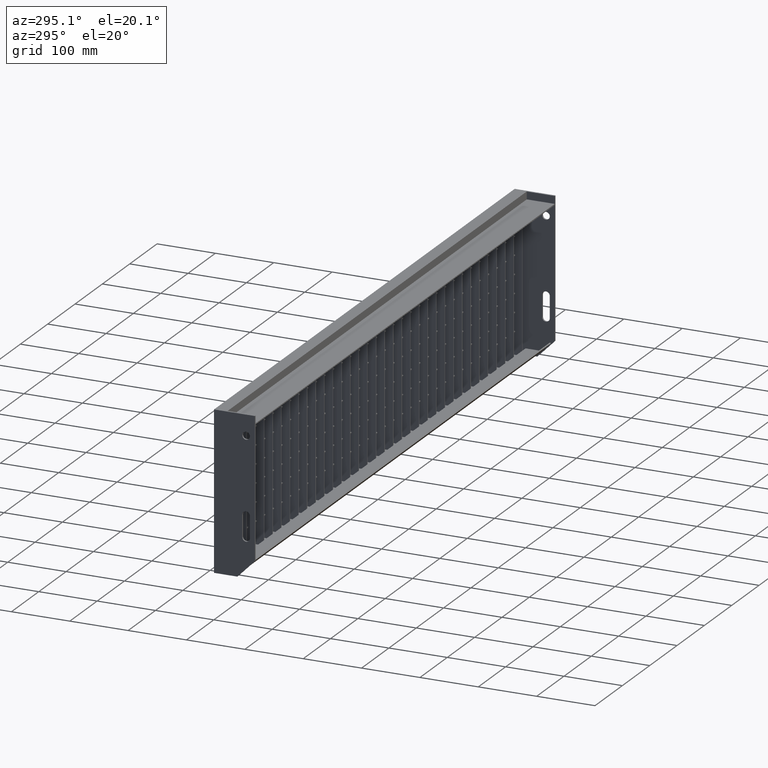
[diagram: clean part render]
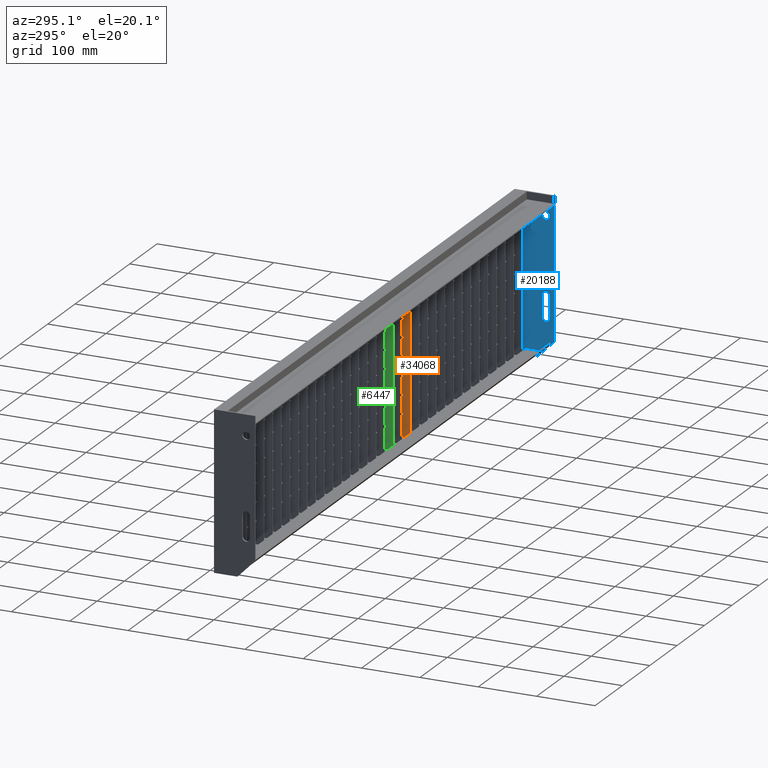
[diagram: same view with three faces highlighted in distinct colors, each labeled with its STEP entity id]
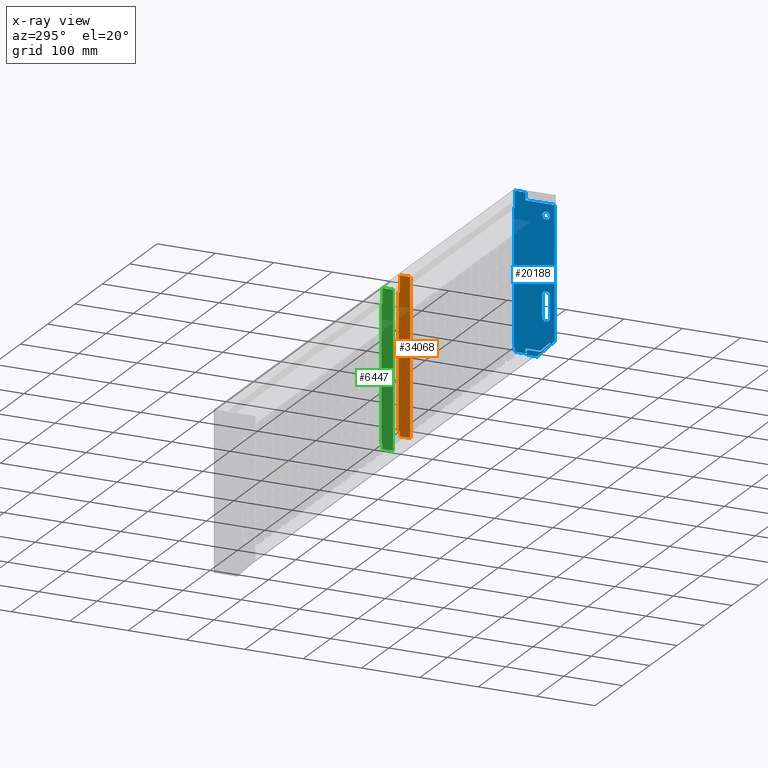
[diagram: x-ray of the same camera — body ghosted, the three highlighted faces saturated]
A machine part, auxiliary view with three faces highlighted in distinct colors.
The next image is the same camera in x-ray (body ghosted, the three faces saturated) — at least one of them is partly hidden behind the body in this view.
Their STEP definitions:

[orange] entity #34068 — the highlighted planar face has unit normal (-1, 0, 0).
#15 = DIRECTION ( 'NONE',  ( 0.0000000000000000000, -1.000000000000000000, 0.0000000000000000000 ) ) ;
#326 = DIRECTION ( 'NONE',  ( 0.0000000000000000000, 1.000000000000000000, 0.0000000000000000000 ) ) ;
#457 = VERTEX_POINT ( 'NONE', #23745 ) ;
#1052 = VERTEX_POINT ( 'NONE', #11243 ) ;
#1055 = CARTESIAN_POINT ( 'NONE',  ( 125.2500000000000000, 50.00000000000000000, -268.0000000000000000 ) ) ;
#1258 = EDGE_CURVE ( 'NONE', #24631, #14525, #2024, .T. ) ;
#1399 = CARTESIAN_POINT ( 'NONE',  ( 125.2500000000000000, 0.0000000000000000000, 0.0000000000000000000 ) ) ;
#1424 = DIRECTION ( 'NONE',  ( 0.0000000000000000000, 0.0000000000000000000, -1.000000000000000000 ) ) ;
#1975 = VERTEX_POINT ( 'NONE', #1055 ) ;
#2024 = LINE ( 'NONE', #29730, #33116 ) ;
#2403 = VERTEX_POINT ( 'NONE', #8217 ) ;
#2531 = EDGE_CURVE ( 'NONE', #9332, #24631, #5450, .T. ) ;
#2745 = VECTOR ( 'NONE', #23069, 1000.000000000000000 ) ;
#2964 = ORIENTED_EDGE ( 'NONE', *, *, #15073, .F. ) ;
#3146 = LINE ( 'NONE', #17683, #2745 ) ;
#5253 = LINE ( 'NONE', #32401, #32598 ) ;
#5450 = LINE ( 'NONE', #22664, #29793 ) ;
#6516 = CARTESIAN_POINT ( 'NONE',  ( 125.2500000000000000, 70.00000000000000000, -29.99999999999999300 ) ) ;
#7496 = EDGE_CURVE ( 'NONE', #1052, #34517, #24089, .T. ) ;
#7508 = CARTESIAN_POINT ( 'NONE',  ( 125.2500000000000000, 67.99999999999998600, -259.5000000000000000 ) ) ;
#7884 = LINE ( 'NONE', #9997, #28022 ) ;
#8217 = CARTESIAN_POINT ( 'NONE',  ( 125.2499999999999700, 70.00000000000021300, -259.5000000000000000 ) ) ;
#8609 = VECTOR ( 'NONE', #11910, 1000.000000000000000 ) ;
#9332 = VERTEX_POINT ( 'NONE', #22656 ) ;
#9997 = CARTESIAN_POINT ( 'NONE',  ( 125.2500000000000000, 67.99999999999998600, -259.5000000000000000 ) ) ;
#10338 = ORIENTED_EDGE ( 'NONE', *, *, #7496, .F. ) ;
#11243 = CARTESIAN_POINT ( 'NONE',  ( 125.2500000000000000, 70.00000000000000000, -29.99999999999999300 ) ) ;
#11458 = ORIENTED_EDGE ( 'NONE', *, *, #17685, .F. ) ;
#11910 = DIRECTION ( 'NONE',  ( 0.0000000000000000000, 0.0000000000000000000, -1.000000000000000000 ) ) ;
#12827 = DIRECTION ( 'NONE',  ( 0.0000000000000000000, 1.000000000000000000, 0.0000000000000000000 ) ) ;
#13747 = VERTEX_POINT ( 'NONE', #27673 ) ;
#14404 = VECTOR ( 'NONE', #15, 1000.000000000000000 ) ;
#14525 = VERTEX_POINT ( 'NONE', #22836 ) ;
#14675 = AXIS2_PLACEMENT_3D ( 'NONE', #1399, #22923, #23041 ) ;
#14924 = ORIENTED_EDGE ( 'NONE', *, *, #1258, .F. ) ;
#15073 = EDGE_CURVE ( 'NONE', #15193, #2403, #7884, .T. ) ;
#15193 = VERTEX_POINT ( 'NONE', #7508 ) ;
#16599 = ORIENTED_EDGE ( 'NONE', *, *, #27085, .F. ) ;
#17202 = CARTESIAN_POINT ( 'NONE',  ( 125.2500000000000000, 50.00000000000000000, -1.999999999999993600 ) ) ;
#17585 = ORIENTED_EDGE ( 'NONE', *, *, #27158, .F. ) ;
#17683 = CARTESIAN_POINT ( 'NONE',  ( 125.2500000000000000, 67.99999999999997200, -268.0000000000000000 ) ) ;
#17685 = EDGE_CURVE ( 'NONE', #2403, #1052, #19472, .T. ) ;
#17874 = ORIENTED_EDGE ( 'NONE', *, *, #27413, .F. ) ;
#19472 = LINE ( 'NONE', #6516, #29105 ) ;
#19741 = CARTESIAN_POINT ( 'NONE',  ( 125.2499999999999700, 68.00000000000000000, -30.00000000000000000 ) ) ;
#20013 = LINE ( 'NONE', #33134, #23367 ) ;
#21296 = CARTESIAN_POINT ( 'NONE',  ( 125.2500000000000000, 50.00000000000000000, -1.999999999999993600 ) ) ;
#22196 = CARTESIAN_POINT ( 'NONE',  ( 125.2500000000000000, 68.00000000000000000, -29.99999999999999300 ) ) ;
#22251 = VECTOR ( 'NONE', #29910, 1000.000000000000000 ) ;
#22283 = FACE_OUTER_BOUND ( 'NONE', #22712, .T. ) ;
#22373 = ORIENTED_EDGE ( 'NONE', *, *, #28467, .F. ) ;
#22656 = CARTESIAN_POINT ( 'NONE',  ( 125.2500000000000000, 68.00000000000000000, -1.999999999999991300 ) ) ;
#22664 = CARTESIAN_POINT ( 'NONE',  ( 125.2500000000000000, 68.00000000000000000, -1.999999999999991300 ) ) ;
#22712 = EDGE_LOOP ( 'NONE', ( #10338, #11458, #2964, #17585, #17874, #22373, #16599, #14924, #28795, #24424 ) ) ;
#22836 = CARTESIAN_POINT ( 'NONE',  ( 125.2500000000000000, 50.00000000000000000, -15.00000000000000000 ) ) ;
#22923 = DIRECTION ( 'NONE',  ( -1.000000000000000000, 0.0000000000000000000, 0.0000000000000000000 ) ) ;
#23041 = DIRECTION ( 'NONE',  ( 0.0000000000000000000, 0.0000000000000000000, 1.000000000000000000 ) ) ;
#23069 = DIRECTION ( 'NONE',  ( 0.0000000000000000000, 1.632680918566405200E-015, 1.000000000000000000 ) ) ;
#23367 = VECTOR ( 'NONE', #1424, 1000.000000000000000 ) ;
#23745 = CARTESIAN_POINT ( 'NONE',  ( 125.2500000000000000, 67.99999999999997200, -268.0000000000000000 ) ) ;
#24089 = LINE ( 'NONE', #28225, #14404 ) ;
#24424 = ORIENTED_EDGE ( 'NONE', *, *, #34391, .F. ) ;
#24631 = VERTEX_POINT ( 'NONE', #21296 ) ;
#25324 = DIRECTION ( 'NONE',  ( -0.0000000000000000000, -0.0000000000000000000, 1.000000000000000000 ) ) ;
#27085 = EDGE_CURVE ( 'NONE', #14525, #13747, #20013, .T. ) ;
#27158 = EDGE_CURVE ( 'NONE', #457, #15193, #3146, .T. ) ;
#27277 = LINE ( 'NONE', #22196, #22251 ) ;
#27413 = EDGE_CURVE ( 'NONE', #1975, #457, #5253, .T. ) ;
#27673 = CARTESIAN_POINT ( 'NONE',  ( 125.2500000000000000, 50.00000000000000000, -259.5000000000000000 ) ) ;
#28022 = VECTOR ( 'NONE', #12827, 1000.000000000000000 ) ;
#28225 = CARTESIAN_POINT ( 'NONE',  ( 125.2500000000000000, 70.00000000000000000, -29.99999999999999300 ) ) ;
#28467 = EDGE_CURVE ( 'NONE', #13747, #1975, #32550, .T. ) ;
#28795 = ORIENTED_EDGE ( 'NONE', *, *, #2531, .F. ) ;
#29105 = VECTOR ( 'NONE', #25324, 1000.000000000000000 ) ;
#29730 = CARTESIAN_POINT ( 'NONE',  ( 125.2500000000000000, 50.00000000000000000, -1.999999999999993600 ) ) ;
#29793 = VECTOR ( 'NONE', #30601, 1000.000000000000000 ) ;
#29910 = DIRECTION ( 'NONE',  ( 0.0000000000000000000, 0.0000000000000000000, 1.000000000000000000 ) ) ;
#30601 = DIRECTION ( 'NONE',  ( 0.0000000000000000000, -1.000000000000000000, -1.204669080539449300E-016 ) ) ;
#32401 = CARTESIAN_POINT ( 'NONE',  ( 125.2500000000000000, 50.00000000000000000, -268.0000000000000000 ) ) ;
#32426 = DIRECTION ( 'NONE',  ( 0.0000000000000000000, 0.0000000000000000000, -1.000000000000000000 ) ) ;
#32550 = LINE ( 'NONE', #17202, #8609 ) ;
#32598 = VECTOR ( 'NONE', #326, 1000.000000000000000 ) ;
#33116 = VECTOR ( 'NONE', #32426, 1000.000000000000000 ) ;
#33134 = CARTESIAN_POINT ( 'NONE',  ( 125.2500000000000000, 50.00000000000000000, -1.999999999999993600 ) ) ;
#33555 = PLANE ( 'NONE',  #14675 ) ;
#34068 = ADVANCED_FACE ( 'NONE', ( #22283 ), #33555, .T. ) ;
#34391 = EDGE_CURVE ( 'NONE', #34517, #9332, #27277, .T. ) ;
#34517 = VERTEX_POINT ( 'NONE', #19741 ) ;

[blue] entity #20188 — the highlighted planar face has unit normal (-1, 0, 0).
#206 = LINE ( 'NONE', #12543, #15790 ) ;
#274 = ORIENTED_EDGE ( 'NONE', *, *, #32957, .F. ) ;
#303 = AXIS2_PLACEMENT_3D ( 'NONE', #18824, #11040, #2685 ) ;
#382 = DIRECTION ( 'NONE',  ( 1.000000000000000000, 0.0000000000000000000, 0.0000000000000000000 ) ) ;
#392 = LINE ( 'NONE', #14580, #28552 ) ;
#436 = ORIENTED_EDGE ( 'NONE', *, *, #26645, .F. ) ;
#449 = LINE ( 'NONE', #21615, #25288 ) ;
#555 = VERTEX_POINT ( 'NONE', #21185 ) ;
#602 = VECTOR ( 'NONE', #19276, 1000.000000000000000 ) ;
#745 = VERTEX_POINT ( 'NONE', #2079 ) ;
#1092 = AXIS2_PLACEMENT_3D ( 'NONE', #28634, #28871, #23619 ) ;
#1411 = VERTEX_POINT ( 'NONE', #9301 ) ;
#1685 = VERTEX_POINT ( 'NONE', #32054 ) ;
#1805 = CARTESIAN_POINT ( 'NONE',  ( 547.0000000000000000, 21.50000000000018500, -203.4999999999998900 ) ) ;
#1961 = VERTEX_POINT ( 'NONE', #27847 ) ;
#2079 = CARTESIAN_POINT ( 'NONE',  ( 547.0000000000000000, 50.00000000000011400, -1.999999999999997800 ) ) ;
#2121 = EDGE_CURVE ( 'NONE', #18787, #12784, #24422, .T. ) ;
#2211 = ORIENTED_EDGE ( 'NONE', *, *, #4395, .T. ) ;
#2501 = CARTESIAN_POINT ( 'NONE',  ( 547.0000000000000000, 68.00000000000000000, -30.00000000000000000 ) ) ;
#2675 = LINE ( 'NONE', #19120, #20391 ) ;
#2685 = DIRECTION ( 'NONE',  ( 0.0000000000000000000, 0.0000000000000000000, -1.000000000000000000 ) ) ;
#2749 = CARTESIAN_POINT ( 'NONE',  ( 547.0000000000000000, 2.020667218593132700E-013, -240.0000000000001700 ) ) ;
#2950 = FACE_BOUND ( 'NONE', #26959, .T. ) ;
#2958 = LINE ( 'NONE', #2501, #24862 ) ;
#3105 = CARTESIAN_POINT ( 'NONE',  ( 547.0000000000000000, 15.00000000000017900, -28.50000000000000400 ) ) ;
#3546 = CARTESIAN_POINT ( 'NONE',  ( 547.0000000000000000, 68.00000000000000000, -2.000000000000001800 ) ) ;
#3652 = ORIENTED_EDGE ( 'NONE', *, *, #12965, .F. ) ;
#3716 = ORIENTED_EDGE ( 'NONE', *, *, #2121, .F. ) ;
#3825 = ORIENTED_EDGE ( 'NONE', *, *, #6712, .F. ) ;
#3990 = CIRCLE ( 'NONE', #303, 6.500000000000005300 ) ;
#4395 = EDGE_CURVE ( 'NONE', #25140, #1411, #19683, .T. ) ;
#4558 = CARTESIAN_POINT ( 'NONE',  ( 547.0000000000000000, 70.00000000000021300, 0.0000000000000000000 ) ) ;
#4723 = VERTEX_POINT ( 'NONE', #24327 ) ;
#4879 = VECTOR ( 'NONE', #28620, 1000.000000000000000 ) ;
#5113 = VECTOR ( 'NONE', #11367, 1000.000000000000000 ) ;
#5151 = EDGE_CURVE ( 'NONE', #5377, #18787, #16651, .T. ) ;
#5251 = LINE ( 'NONE', #30020, #602 ) ;
#5377 = VERTEX_POINT ( 'NONE', #12489 ) ;
#5532 = PLANE ( 'NONE',  #7441 ) ;
#5597 = ORIENTED_EDGE ( 'NONE', *, *, #11144, .F. ) ;
#5808 = DIRECTION ( 'NONE',  ( 0.0000000000000000000, 0.0000000000000000000, -1.000000000000000000 ) ) ;
#6136 = EDGE_CURVE ( 'NONE', #17119, #26852, #22897, .T. ) ;
#6140 = ORIENTED_EDGE ( 'NONE', *, *, #28984, .F. ) ;
#6442 = VERTEX_POINT ( 'NONE', #17905 ) ;
#6490 = CARTESIAN_POINT ( 'NONE',  ( 547.0000000000000000, 68.00000000000000000, -30.00000000000000000 ) ) ;
#6573 = VERTEX_POINT ( 'NONE', #26672 ) ;
#6712 = EDGE_CURVE ( 'NONE', #26852, #26424, #15727, .T. ) ;
#6777 = CARTESIAN_POINT ( 'NONE',  ( 547.0000000000000000, 50.00000000000011400, -15.00000000000000000 ) ) ;
#6964 = VECTOR ( 'NONE', #25212, 1000.000000000000000 ) ;
#7234 = DIRECTION ( 'NONE',  ( 0.0000000000000000000, -0.7071067811865474600, 0.7071067811865474600 ) ) ;
#7441 = AXIS2_PLACEMENT_3D ( 'NONE', #24349, #27021, #26576 ) ;
#7692 = DIRECTION ( 'NONE',  ( 0.0000000000000000000, 0.0000000000000000000, 1.000000000000000000 ) ) ;
#7904 = ORIENTED_EDGE ( 'NONE', *, *, #20731, .F. ) ;
#8081 = DIRECTION ( 'NONE',  ( -0.0000000000000000000, 1.000000000000000000, -0.0000000000000000000 ) ) ;
#8179 = VERTEX_POINT ( 'NONE', #23860 ) ;
#8557 = VECTOR ( 'NONE', #16328, 1000.000000000000000 ) ;
#8575 = ORIENTED_EDGE ( 'NONE', *, *, #19516, .T. ) ;
#8873 = LINE ( 'NONE', #2749, #29020 ) ;
#8937 = VERTEX_POINT ( 'NONE', #17783 ) ;
#8949 = CARTESIAN_POINT ( 'NONE',  ( 547.0000000000000000, 8.500000000000163400, -166.4999999999999400 ) ) ;
#9106 = EDGE_CURVE ( 'NONE', #8937, #25140, #3990, .T. ) ;
#9129 = VECTOR ( 'NONE', #30530, 1000.000000000000000 ) ;
#9200 = EDGE_CURVE ( 'NONE', #26973, #1685, #5251, .T. ) ;
#9209 = CARTESIAN_POINT ( 'NONE',  ( 547.0000000000000000, 30.00000000000020600, -270.0000000000000000 ) ) ;
#9301 = CARTESIAN_POINT ( 'NONE',  ( 547.0000000000000000, 8.500000000000177600, -203.4999999999998900 ) ) ;
#9305 = EDGE_CURVE ( 'NONE', #13723, #5377, #11560, .T. ) ;
#9562 = ORIENTED_EDGE ( 'NONE', *, *, #12578, .F. ) ;
#9753 = EDGE_CURVE ( 'NONE', #29351, #20963, #31279, .T. ) ;
#9800 = VECTOR ( 'NONE', #15256, 999.9999999999998900 ) ;
#9857 = CARTESIAN_POINT ( 'NONE',  ( 547.0000000000000000, 6.650757595082533900, -244.5294372515228600 ) ) ;
#10025 = CARTESIAN_POINT ( 'NONE',  ( 547.0000000000000000, 68.00000000000000000, -2.000000000000001800 ) ) ;
#10075 = LINE ( 'NONE', #32309, #28114 ) ;
#10463 = EDGE_CURVE ( 'NONE', #26424, #1961, #21582, .T. ) ;
#10628 = EDGE_LOOP ( 'NONE', ( #22115, #2211, #24955, #16217, #33085 ) ) ;
#11040 = DIRECTION ( 'NONE',  ( 1.000000000000000000, 0.0000000000000000000, 0.0000000000000000000 ) ) ;
#11144 = EDGE_CURVE ( 'NONE', #33581, #26973, #449, .T. ) ;
#11367 = DIRECTION ( 'NONE',  ( 0.0000000000000000000, -1.000000000000000000, 3.469446951953606200E-017 ) ) ;
#11482 = VERTEX_POINT ( 'NONE', #1805 ) ;
#11560 = LINE ( 'NONE', #30473, #27950 ) ;
#11586 = VERTEX_POINT ( 'NONE', #29400 ) ;
#11595 = EDGE_CURVE ( 'NONE', #12784, #30814, #2958, .T. ) ;
#11977 = DIRECTION ( 'NONE',  ( 0.0000000000000000000, -1.000000000000000000, 0.0000000000000000000 ) ) ;
#12489 = CARTESIAN_POINT ( 'NONE',  ( 547.0000000000000000, 70.00000000000021300, -259.5000000000000000 ) ) ;
#12543 = CARTESIAN_POINT ( 'NONE',  ( 547.0000000000000000, 23.62132034355966700, -261.5000000000000000 ) ) ;
#12578 = EDGE_CURVE ( 'NONE', #6442, #4723, #8873, .T. ) ;
#12686 = EDGE_LOOP ( 'NONE', ( #9562, #274, #436, #3652, #31511, #3716, #13112, #21966, #32653, #7904, #27825, #3825, #21774, #31956, #17080, #12728, #25149, #5597, #6140 ) ) ;
#12728 = ORIENTED_EDGE ( 'NONE', *, *, #20506, .F. ) ;
#12784 = VERTEX_POINT ( 'NONE', #6490 ) ;
#12965 = EDGE_CURVE ( 'NONE', #30814, #745, #13072, .T. ) ;
#13072 = LINE ( 'NONE', #10025, #31946 ) ;
#13112 = ORIENTED_EDGE ( 'NONE', *, *, #5151, .F. ) ;
#13661 = DIRECTION ( 'NONE',  ( 0.0000000000000000000, 0.0000000000000000000, 1.000000000000000000 ) ) ;
#13723 = VERTEX_POINT ( 'NONE', #17009 ) ;
#13892 = FACE_OUTER_BOUND ( 'NONE', #12686, .T. ) ;
#14580 = CARTESIAN_POINT ( 'NONE',  ( 547.0000000000000000, 48.00000000000020600, -261.5000000000000000 ) ) ;
#14944 = DIRECTION ( 'NONE',  ( 0.0000000000000000000, -1.000000000000000000, 0.0000000000000000000 ) ) ;
#15256 = DIRECTION ( 'NONE',  ( 0.0000000000000000000, 0.7071067811865489100, 0.7071067811865462400 ) ) ;
#15551 = CARTESIAN_POINT ( 'NONE',  ( 547.0000000000000000, 15.00000000000017900, -41.50000000000000000 ) ) ;
#15727 = LINE ( 'NONE', #32504, #8557 ) ;
#15790 = VECTOR ( 'NONE', #7234, 1000.000000000000100 ) ;
#15859 = EDGE_CURVE ( 'NONE', #11482, #8937, #24006, .T. ) ;
#15902 = AXIS2_PLACEMENT_3D ( 'NONE', #29980, #32339, #21806 ) ;
#16217 = ORIENTED_EDGE ( 'NONE', *, *, #23264, .T. ) ;
#16328 = DIRECTION ( 'NONE',  ( 0.0000000000000000000, 1.000000000000000000, 0.0000000000000000000 ) ) ;
#16503 = LINE ( 'NONE', #9857, #9800 ) ;
#16651 = LINE ( 'NONE', #4558, #4879 ) ;
#16863 = CARTESIAN_POINT ( 'NONE',  ( 547.0000000000000000, 15.00000000000018300, -203.4999999999998900 ) ) ;
#17009 = CARTESIAN_POINT ( 'NONE',  ( 547.0000000000000000, 68.00000000000021300, -259.5000000000000000 ) ) ;
#17080 = ORIENTED_EDGE ( 'NONE', *, *, #28063, .F. ) ;
#17119 = VERTEX_POINT ( 'NONE', #34245 ) ;
#17783 = CARTESIAN_POINT ( 'NONE',  ( 547.0000000000000000, 21.50000000000019500, -166.4999999999999400 ) ) ;
#17789 = CARTESIAN_POINT ( 'NONE',  ( 547.0000000000000000, 70.00000000000000000, -30.00000000000000000 ) ) ;
#17905 = CARTESIAN_POINT ( 'NONE',  ( 547.0000000000000000, 2.601319824573162500E-016, -14.99999999999999800 ) ) ;
#18381 = LINE ( 'NONE', #25549, #6964 ) ;
#18397 = DIRECTION ( 'NONE',  ( 0.0000000000000000000, -1.000000000000000000, 2.168404344971021900E-016 ) ) ;
#18787 = VERTEX_POINT ( 'NONE', #32681 ) ;
#18824 = CARTESIAN_POINT ( 'NONE',  ( 547.0000000000000000, 15.00000000000017900, -166.4999999999999400 ) ) ;
#18980 = VECTOR ( 'NONE', #14944, 1000.000000000000000 ) ;
#19120 = CARTESIAN_POINT ( 'NONE',  ( 547.0000000000000000, 30.00000000000020600, -270.0000000000000000 ) ) ;
#19276 = DIRECTION ( 'NONE',  ( 0.0000000000000000000, 0.0000000000000000000, 1.000000000000000000 ) ) ;
#19323 = DIRECTION ( 'NONE',  ( 0.0000000000000000000, 0.7071067811865470200, -0.7071067811865479100 ) ) ;
#19516 = EDGE_CURVE ( 'NONE', #20963, #29351, #24857, .T. ) ;
#19683 = LINE ( 'NONE', #8949, #9129 ) ;
#19700 = AXIS2_PLACEMENT_3D ( 'NONE', #28573, #20772, #31389 ) ;
#20188 = ADVANCED_FACE ( 'NONE', ( #21079, #2950, #13892 ), #5532, .T. ) ;
#20391 = VECTOR ( 'NONE', #27293, 1000.000000000000100 ) ;
#20506 = EDGE_CURVE ( 'NONE', #1685, #11586, #392, .T. ) ;
#20731 = EDGE_CURVE ( 'NONE', #1961, #8179, #24375, .T. ) ;
#20772 = DIRECTION ( 'NONE',  ( 1.000000000000000000, 0.0000000000000000000, 0.0000000000000000000 ) ) ;
#20963 = VERTEX_POINT ( 'NONE', #3105 ) ;
#20975 = EDGE_CURVE ( 'NONE', #1411, #6573, #32295, .T. ) ;
#21079 = FACE_BOUND ( 'NONE', #10628, .T. ) ;
#21185 = CARTESIAN_POINT ( 'NONE',  ( 547.0000000000000000, 50.00000000000011400, -15.00000000000000000 ) ) ;
#21243 = VERTEX_POINT ( 'NONE', #29574 ) ;
#21244 = CARTESIAN_POINT ( 'NONE',  ( 547.0000000000000000, 24.44974746830583400, -259.5000000000000000 ) ) ;
#21490 = CARTESIAN_POINT ( 'NONE',  ( 547.0000000000000000, 8.500000000000163400, -166.4999999999999400 ) ) ;
#21582 = LINE ( 'NONE', #26205, #31202 ) ;
#21606 = CARTESIAN_POINT ( 'NONE',  ( 547.0000000000000000, 21.50000000000018100, -203.4999999999998900 ) ) ;
#21615 = CARTESIAN_POINT ( 'NONE',  ( 547.0000000000000000, 70.00000000000021300, -270.0000000000000000 ) ) ;
#21774 = ORIENTED_EDGE ( 'NONE', *, *, #6136, .F. ) ;
#21806 = DIRECTION ( 'NONE',  ( 0.0000000000000000000, 0.0000000000000000000, -1.000000000000000000 ) ) ;
#21966 = ORIENTED_EDGE ( 'NONE', *, *, #9305, .F. ) ;
#22115 = ORIENTED_EDGE ( 'NONE', *, *, #9106, .T. ) ;
#22348 = ORIENTED_EDGE ( 'NONE', *, *, #9753, .T. ) ;
#22897 = LINE ( 'NONE', #29958, #23752 ) ;
#23264 = EDGE_CURVE ( 'NONE', #6573, #11482, #28092, .T. ) ;
#23532 = VECTOR ( 'NONE', #23711, 1000.000000000000000 ) ;
#23619 = DIRECTION ( 'NONE',  ( 0.0000000000000000000, 0.0000000000000000000, -1.000000000000000000 ) ) ;
#23711 = DIRECTION ( 'NONE',  ( 0.0000000000000000000, 1.000000000000000000, 0.0000000000000000000 ) ) ;
#23752 = VECTOR ( 'NONE', #19323, 1000.000000000000100 ) ;
#23860 = CARTESIAN_POINT ( 'NONE',  ( 547.0000000000000000, 68.00000000000021300, -268.0000000000000000 ) ) ;
#24006 = LINE ( 'NONE', #21606, #27745 ) ;
#24304 = EDGE_CURVE ( 'NONE', #8179, #13723, #10075, .T. ) ;
#24327 = CARTESIAN_POINT ( 'NONE',  ( 547.0000000000000000, 2.020667218593132700E-013, -240.0000000000001700 ) ) ;
#24349 = CARTESIAN_POINT ( 'NONE',  ( 547.0000000000000000, 0.0000000000000000000, 0.0000000000000000000 ) ) ;
#24375 = LINE ( 'NONE', #26158, #23532 ) ;
#24422 = LINE ( 'NONE', #17789, #18980 ) ;
#24838 = CARTESIAN_POINT ( 'NONE',  ( 547.0000000000000000, 48.00000000000020600, -270.0000000000000000 ) ) ;
#24857 = CIRCLE ( 'NONE', #1092, 6.499999999999999100 ) ;
#24862 = VECTOR ( 'NONE', #7692, 1000.000000000000000 ) ;
#24955 = ORIENTED_EDGE ( 'NONE', *, *, #20975, .T. ) ;
#25140 = VERTEX_POINT ( 'NONE', #21490 ) ;
#25149 = ORIENTED_EDGE ( 'NONE', *, *, #9200, .F. ) ;
#25212 = DIRECTION ( 'NONE',  ( 0.0000000000000000000, 0.0000000000000000000, -1.000000000000000000 ) ) ;
#25288 = VECTOR ( 'NONE', #8081, 1000.000000000000000 ) ;
#25549 = CARTESIAN_POINT ( 'NONE',  ( 547.0000000000000000, 50.00000000000011400, -1.999999999999997800 ) ) ;
#26158 = CARTESIAN_POINT ( 'NONE',  ( 547.0000000000000000, 50.00000000000021300, -268.0000000000000000 ) ) ;
#26205 = CARTESIAN_POINT ( 'NONE',  ( 547.0000000000000000, 50.00000000000021300, -259.5000000000000000 ) ) ;
#26424 = VERTEX_POINT ( 'NONE', #32017 ) ;
#26576 = DIRECTION ( 'NONE',  ( 0.0000000000000000000, 0.0000000000000000000, 1.000000000000000000 ) ) ;
#26645 = EDGE_CURVE ( 'NONE', #745, #555, #18381, .T. ) ;
#26672 = CARTESIAN_POINT ( 'NONE',  ( 547.0000000000000000, 15.00000000000018300, -209.9999999999998900 ) ) ;
#26852 = VERTEX_POINT ( 'NONE', #21244 ) ;
#26959 = EDGE_LOOP ( 'NONE', ( #22348, #8575 ) ) ;
#26973 = VERTEX_POINT ( 'NONE', #24838 ) ;
#27021 = DIRECTION ( 'NONE',  ( -1.000000000000000000, 0.0000000000000000000, 0.0000000000000000000 ) ) ;
#27079 = DIRECTION ( 'NONE',  ( 0.0000000000000000000, 3.750753461571482800E-016, 1.000000000000000000 ) ) ;
#27293 = DIRECTION ( 'NONE',  ( -0.0000000000000000000, 0.7071067811865491300, -0.7071067811865459100 ) ) ;
#27745 = VECTOR ( 'NONE', #27079, 1000.000000000000000 ) ;
#27825 = ORIENTED_EDGE ( 'NONE', *, *, #10463, .F. ) ;
#27847 = CARTESIAN_POINT ( 'NONE',  ( 547.0000000000000000, 50.00000000000021300, -268.0000000000000000 ) ) ;
#27913 = DIRECTION ( 'NONE',  ( 0.0000000000000000000, 1.000000000000000000, 0.0000000000000000000 ) ) ;
#27950 = VECTOR ( 'NONE', #27913, 1000.000000000000000 ) ;
#28063 = EDGE_CURVE ( 'NONE', #11586, #21243, #206, .T. ) ;
#28092 = CIRCLE ( 'NONE', #19700, 6.500000000000005300 ) ;
#28114 = VECTOR ( 'NONE', #13661, 1000.000000000000000 ) ;
#28552 = VECTOR ( 'NONE', #11977, 1000.000000000000000 ) ;
#28573 = CARTESIAN_POINT ( 'NONE',  ( 547.0000000000000000, 15.00000000000018300, -203.4999999999998900 ) ) ;
#28620 = DIRECTION ( 'NONE',  ( -0.0000000000000000000, -0.0000000000000000000, 1.000000000000000000 ) ) ;
#28634 = CARTESIAN_POINT ( 'NONE',  ( 547.0000000000000000, 15.00000000000017900, -35.00000000000000000 ) ) ;
#28871 = DIRECTION ( 'NONE',  ( 1.000000000000000000, 0.0000000000000000000, 0.0000000000000000000 ) ) ;
#28984 = EDGE_CURVE ( 'NONE', #4723, #33581, #2675, .T. ) ;
#29020 = VECTOR ( 'NONE', #29181, 1000.000000000000000 ) ;
#29181 = DIRECTION ( 'NONE',  ( -0.0000000000000000000, -0.0000000000000000000, -1.000000000000000000 ) ) ;
#29351 = VERTEX_POINT ( 'NONE', #15551 ) ;
#29400 = CARTESIAN_POINT ( 'NONE',  ( 547.0000000000000000, 23.62132034355966700, -261.5000000000000000 ) ) ;
#29574 = CARTESIAN_POINT ( 'NONE',  ( 547.0000000000000000, 6.650757595082533900, -244.5294372515228600 ) ) ;
#29958 = CARTESIAN_POINT ( 'NONE',  ( 547.0000000000000000, 8.064971157455628900, -243.1152236891497900 ) ) ;
#29980 = CARTESIAN_POINT ( 'NONE',  ( 547.0000000000000000, 15.00000000000017900, -35.00000000000000000 ) ) ;
#30020 = CARTESIAN_POINT ( 'NONE',  ( 547.0000000000000000, 48.00000000000020600, -270.0000000000000000 ) ) ;
#30148 = AXIS2_PLACEMENT_3D ( 'NONE', #16863, #382, #5808 ) ;
#30287 = LINE ( 'NONE', #6777, #5113 ) ;
#30473 = CARTESIAN_POINT ( 'NONE',  ( 547.0000000000000000, 68.00000000000021300, -259.5000000000000000 ) ) ;
#30530 = DIRECTION ( 'NONE',  ( 0.0000000000000000000, 3.750753461571482800E-016, -1.000000000000000000 ) ) ;
#30814 = VERTEX_POINT ( 'NONE', #3546 ) ;
#31202 = VECTOR ( 'NONE', #31461, 1000.000000000000000 ) ;
#31279 = CIRCLE ( 'NONE', #15902, 6.499999999999999100 ) ;
#31368 = EDGE_CURVE ( 'NONE', #21243, #17119, #16503, .T. ) ;
#31389 = DIRECTION ( 'NONE',  ( 0.0000000000000000000, 0.0000000000000000000, -1.000000000000000000 ) ) ;
#31461 = DIRECTION ( 'NONE',  ( 0.0000000000000000000, 0.0000000000000000000, -1.000000000000000000 ) ) ;
#31511 = ORIENTED_EDGE ( 'NONE', *, *, #11595, .F. ) ;
#31946 = VECTOR ( 'NONE', #18397, 1000.000000000000000 ) ;
#31956 = ORIENTED_EDGE ( 'NONE', *, *, #31368, .F. ) ;
#32017 = CARTESIAN_POINT ( 'NONE',  ( 547.0000000000000000, 50.00000000000021300, -259.5000000000000000 ) ) ;
#32054 = CARTESIAN_POINT ( 'NONE',  ( 547.0000000000000000, 48.00000000000020600, -261.5000000000000000 ) ) ;
#32295 = CIRCLE ( 'NONE', #30148, 6.500000000000005300 ) ;
#32309 = CARTESIAN_POINT ( 'NONE',  ( 547.0000000000000000, 68.00000000000021300, -268.0000000000000000 ) ) ;
#32339 = DIRECTION ( 'NONE',  ( 1.000000000000000000, 0.0000000000000000000, 0.0000000000000000000 ) ) ;
#32504 = CARTESIAN_POINT ( 'NONE',  ( 547.0000000000000000, 24.44974746830583400, -259.5000000000000000 ) ) ;
#32653 = ORIENTED_EDGE ( 'NONE', *, *, #24304, .F. ) ;
#32681 = CARTESIAN_POINT ( 'NONE',  ( 547.0000000000000000, 70.00000000000000000, -30.00000000000000000 ) ) ;
#32957 = EDGE_CURVE ( 'NONE', #555, #6442, #30287, .T. ) ;
#33085 = ORIENTED_EDGE ( 'NONE', *, *, #15859, .T. ) ;
#33581 = VERTEX_POINT ( 'NONE', #9209 ) ;
#34245 = CARTESIAN_POINT ( 'NONE',  ( 547.0000000000000000, 8.064971157455628900, -243.1152236891497900 ) ) ;

[green] entity #6447 — the highlighted planar face has unit normal (-1, 0, 0).
#420 = DIRECTION ( 'NONE',  ( 0.0000000000000000000, 1.000000000000000000, 0.0000000000000000000 ) ) ;
#787 = CARTESIAN_POINT ( 'NONE',  ( 62.25000000000000000, 68.00000000000000000, -29.99999999999999300 ) ) ;
#945 = ORIENTED_EDGE ( 'NONE', *, *, #15544, .F. ) ;
#1339 = VERTEX_POINT ( 'NONE', #30293 ) ;
#1755 = PLANE ( 'NONE',  #15587 ) ;
#1770 = DIRECTION ( 'NONE',  ( 0.0000000000000000000, 0.0000000000000000000, 1.000000000000000000 ) ) ;
#2397 = DIRECTION ( 'NONE',  ( 0.0000000000000000000, 0.0000000000000000000, -1.000000000000000000 ) ) ;
#2416 = EDGE_CURVE ( 'NONE', #7643, #2444, #17701, .T. ) ;
#2444 = VERTEX_POINT ( 'NONE', #24900 ) ;
#2725 = DIRECTION ( 'NONE',  ( 0.0000000000000000000, 0.0000000000000000000, -1.000000000000000000 ) ) ;
#2833 = DIRECTION ( 'NONE',  ( 0.0000000000000000000, -1.000000000000000000, -1.204669080539449300E-016 ) ) ;
#2888 = EDGE_CURVE ( 'NONE', #3142, #5979, #24809, .T. ) ;
#3142 = VERTEX_POINT ( 'NONE', #3268 ) ;
#3268 = CARTESIAN_POINT ( 'NONE',  ( 62.25000000000000000, 70.00000000000000000, -29.99999999999999300 ) ) ;
#3347 = VECTOR ( 'NONE', #23901, 1000.000000000000000 ) ;
#3992 = LINE ( 'NONE', #18278, #31722 ) ;
#4024 = LINE ( 'NONE', #31469, #31758 ) ;
#4173 = CARTESIAN_POINT ( 'NONE',  ( 62.25000000000000000, 68.00000000000021300, -12.68095132369090200 ) ) ;
#4533 = DIRECTION ( 'NONE',  ( 0.0000000000000000000, 1.000000000000000000, 0.0000000000000000000 ) ) ;
#4552 = DIRECTION ( 'NONE',  ( 0.0000000000000000000, 1.632680918566405200E-015, 1.000000000000000000 ) ) ;
#5046 = VECTOR ( 'NONE', #30953, 1000.000000000000000 ) ;
#5310 = VECTOR ( 'NONE', #4533, 1000.000000000000000 ) ;
#5979 = VERTEX_POINT ( 'NONE', #21447 ) ;
#6019 = CARTESIAN_POINT ( 'NONE',  ( 62.25000000000000000, 67.99999999999998600, -259.5000000000000000 ) ) ;
#6447 = ADVANCED_FACE ( 'NONE', ( #11932 ), #1755, .T. ) ;
#6751 = ORIENTED_EDGE ( 'NONE', *, *, #21387, .F. ) ;
#7130 = LINE ( 'NONE', #12079, #5046 ) ;
#7643 = VERTEX_POINT ( 'NONE', #6019 ) ;
#7876 = ORIENTED_EDGE ( 'NONE', *, *, #20636, .F. ) ;
#8462 = VERTEX_POINT ( 'NONE', #4173 ) ;
#10152 = ORIENTED_EDGE ( 'NONE', *, *, #22777, .F. ) ;
#10455 = VECTOR ( 'NONE', #11741, 1000.000000000000000 ) ;
#10744 = ORIENTED_EDGE ( 'NONE', *, *, #2888, .F. ) ;
#10989 = VECTOR ( 'NONE', #25051, 1000.000000000000000 ) ;
#11654 = CARTESIAN_POINT ( 'NONE',  ( 62.25000000000000000, 68.00000000000000000, -7.319048676309098900 ) ) ;
#11741 = DIRECTION ( 'NONE',  ( 0.0000000000000000000, 0.0000000000000000000, 1.000000000000000000 ) ) ;
#11932 = FACE_OUTER_BOUND ( 'NONE', #34462, .T. ) ;
#12020 = LINE ( 'NONE', #34357, #32190 ) ;
#12079 = CARTESIAN_POINT ( 'NONE',  ( 62.25000000000000000, 50.00000000000000000, -1.999999999999993600 ) ) ;
#13119 = CARTESIAN_POINT ( 'NONE',  ( 62.25000000000000000, 50.00000000000000000, -259.5000000000000000 ) ) ;
#13377 = ORIENTED_EDGE ( 'NONE', *, *, #30828, .F. ) ;
#14966 = LINE ( 'NONE', #34440, #22951 ) ;
#15417 = CARTESIAN_POINT ( 'NONE',  ( 62.25000000000000000, 0.0000000000000000000, 0.0000000000000000000 ) ) ;
#15544 = EDGE_CURVE ( 'NONE', #18104, #33267, #22148, .T. ) ;
#15587 = AXIS2_PLACEMENT_3D ( 'NONE', #15417, #28655, #23288 ) ;
#15743 = EDGE_CURVE ( 'NONE', #33267, #7643, #12020, .T. ) ;
#16022 = CARTESIAN_POINT ( 'NONE',  ( 62.25000000000000000, 70.00000000000000000, -29.99999999999999300 ) ) ;
#16141 = CARTESIAN_POINT ( 'NONE',  ( 62.25000000000000000, 50.00000000000000000, -1.999999999999993600 ) ) ;
#16438 = CARTESIAN_POINT ( 'NONE',  ( 62.25000000000000000, 67.99999999999998600, -259.5000000000000000 ) ) ;
#16832 = VECTOR ( 'NONE', #420, 1000.000000000000000 ) ;
#17701 = LINE ( 'NONE', #16438, #16832 ) ;
#17863 = ORIENTED_EDGE ( 'NONE', *, *, #2416, .F. ) ;
#18104 = VERTEX_POINT ( 'NONE', #28505 ) ;
#18278 = CARTESIAN_POINT ( 'NONE',  ( 62.25000000000000000, 68.00000000000000000, -29.99999999999999300 ) ) ;
#19546 = CARTESIAN_POINT ( 'NONE',  ( 62.25000000000000000, 50.00000000000000000, -15.00000000000000000 ) ) ;
#19768 = VECTOR ( 'NONE', #2833, 1000.000000000000000 ) ;
#20284 = ORIENTED_EDGE ( 'NONE', *, *, #24263, .F. ) ;
#20636 = EDGE_CURVE ( 'NONE', #1339, #29688, #7130, .T. ) ;
#21387 = EDGE_CURVE ( 'NONE', #5979, #8462, #31854, .T. ) ;
#21447 = CARTESIAN_POINT ( 'NONE',  ( 62.25000000000002800, 68.00000000000000000, -30.00000000000000000 ) ) ;
#21997 = ORIENTED_EDGE ( 'NONE', *, *, #27205, .F. ) ;
#22148 = LINE ( 'NONE', #33979, #5310 ) ;
#22241 = CARTESIAN_POINT ( 'NONE',  ( 62.25000000000000000, 70.00000000000000000, -29.99999999999999300 ) ) ;
#22342 = LINE ( 'NONE', #22241, #10989 ) ;
#22777 = EDGE_CURVE ( 'NONE', #8462, #33934, #4024, .T. ) ;
#22951 = VECTOR ( 'NONE', #2397, 1000.000000000000000 ) ;
#23288 = DIRECTION ( 'NONE',  ( 0.0000000000000000000, 0.0000000000000000000, 1.000000000000000000 ) ) ;
#23805 = ORIENTED_EDGE ( 'NONE', *, *, #24259, .F. ) ;
#23901 = DIRECTION ( 'NONE',  ( 0.0000000000000000000, -1.000000000000000000, 0.0000000000000000000 ) ) ;
#24043 = ORIENTED_EDGE ( 'NONE', *, *, #26783, .F. ) ;
#24259 = EDGE_CURVE ( 'NONE', #34045, #1339, #34838, .T. ) ;
#24263 = EDGE_CURVE ( 'NONE', #29688, #34613, #29397, .T. ) ;
#24359 = CARTESIAN_POINT ( 'NONE',  ( 62.25000000000000000, 68.00000000000000000, -1.999999999999991300 ) ) ;
#24809 = LINE ( 'NONE', #16022, #3347 ) ;
#24900 = CARTESIAN_POINT ( 'NONE',  ( 62.25000000000001400, 70.00000000000021300, -259.5000000000000000 ) ) ;
#25051 = DIRECTION ( 'NONE',  ( -0.0000000000000000000, -0.0000000000000000000, 1.000000000000000000 ) ) ;
#26348 = ORIENTED_EDGE ( 'NONE', *, *, #15743, .F. ) ;
#26783 = EDGE_CURVE ( 'NONE', #34613, #18104, #14966, .T. ) ;
#27205 = EDGE_CURVE ( 'NONE', #33934, #34045, #3992, .T. ) ;
#28505 = CARTESIAN_POINT ( 'NONE',  ( 62.25000000000000000, 50.00000000000000000, -268.0000000000000000 ) ) ;
#28655 = DIRECTION ( 'NONE',  ( -1.000000000000000000, 0.0000000000000000000, 0.0000000000000000000 ) ) ;
#28891 = DIRECTION ( 'NONE',  ( 0.0000000000000000000, 0.0000000000000000000, 1.000000000000000000 ) ) ;
#28957 = VECTOR ( 'NONE', #2725, 1000.000000000000000 ) ;
#29397 = LINE ( 'NONE', #16141, #28957 ) ;
#29688 = VERTEX_POINT ( 'NONE', #19546 ) ;
#30293 = CARTESIAN_POINT ( 'NONE',  ( 62.25000000000000000, 50.00000000000000000, -1.999999999999993600 ) ) ;
#30828 = EDGE_CURVE ( 'NONE', #2444, #3142, #22342, .T. ) ;
#30863 = CARTESIAN_POINT ( 'NONE',  ( 62.25000000000000000, 68.00000000000000000, -1.999999999999991300 ) ) ;
#30953 = DIRECTION ( 'NONE',  ( 0.0000000000000000000, 0.0000000000000000000, -1.000000000000000000 ) ) ;
#31469 = CARTESIAN_POINT ( 'NONE',  ( 62.25000000000000000, 68.00000000000000000, -29.99999999999999300 ) ) ;
#31722 = VECTOR ( 'NONE', #1770, 1000.000000000000000 ) ;
#31758 = VECTOR ( 'NONE', #28891, 1000.000000000000000 ) ;
#31854 = LINE ( 'NONE', #787, #10455 ) ;
#31883 = CARTESIAN_POINT ( 'NONE',  ( 62.25000000000000000, 67.99999999999997200, -268.0000000000000000 ) ) ;
#32190 = VECTOR ( 'NONE', #4552, 1000.000000000000000 ) ;
#33267 = VERTEX_POINT ( 'NONE', #31883 ) ;
#33934 = VERTEX_POINT ( 'NONE', #11654 ) ;
#33979 = CARTESIAN_POINT ( 'NONE',  ( 62.25000000000000000, 50.00000000000000000, -268.0000000000000000 ) ) ;
#34045 = VERTEX_POINT ( 'NONE', #30863 ) ;
#34357 = CARTESIAN_POINT ( 'NONE',  ( 62.25000000000000000, 67.99999999999997200, -268.0000000000000000 ) ) ;
#34440 = CARTESIAN_POINT ( 'NONE',  ( 62.25000000000000000, 50.00000000000000000, -1.999999999999993600 ) ) ;
#34462 = EDGE_LOOP ( 'NONE', ( #10744, #13377, #17863, #26348, #945, #24043, #20284, #7876, #23805, #21997, #10152, #6751 ) ) ;
#34613 = VERTEX_POINT ( 'NONE', #13119 ) ;
#34838 = LINE ( 'NONE', #24359, #19768 ) ;